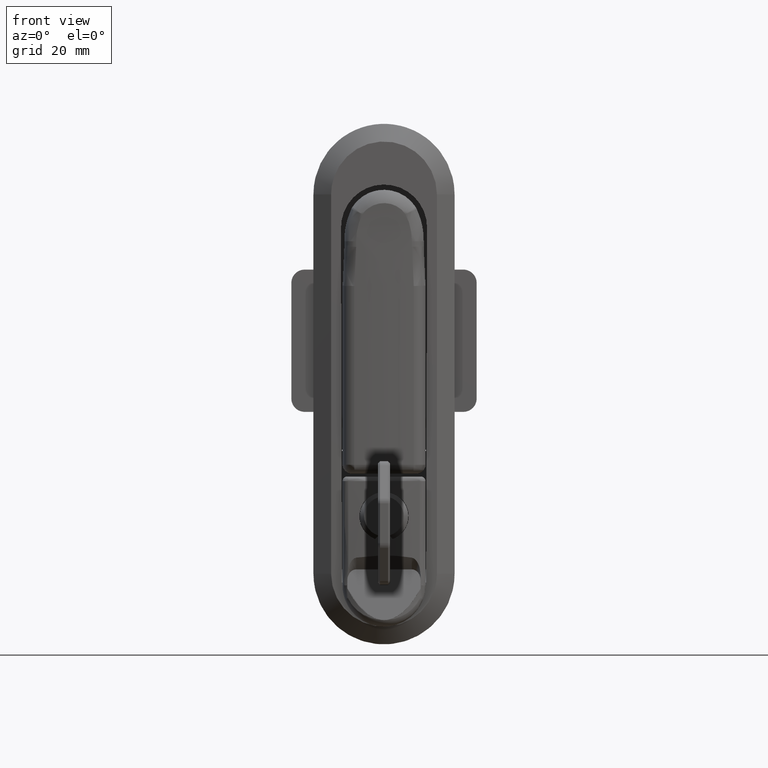
[diagram: clean part render]
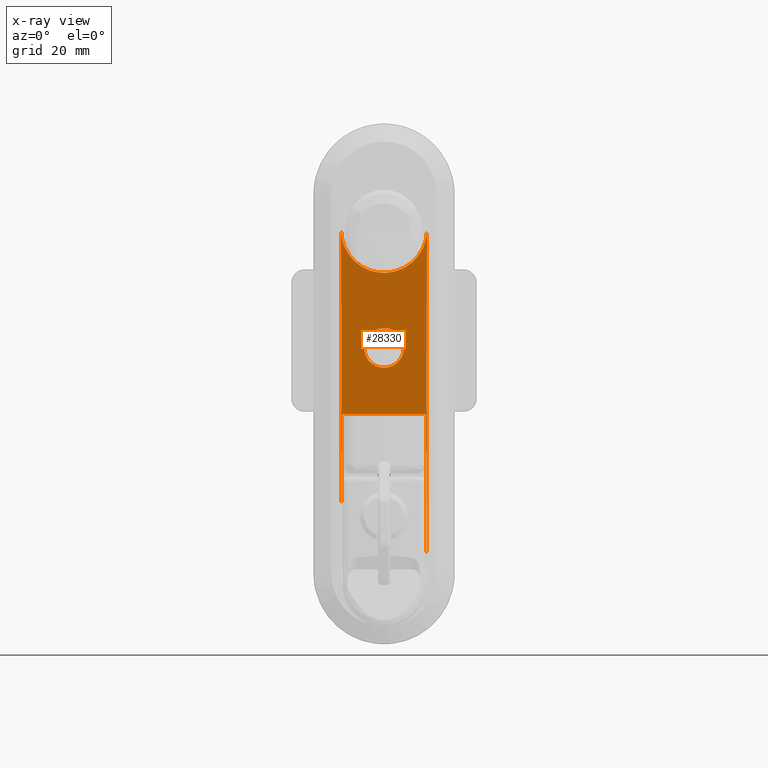
[diagram: x-ray — body ghosted, one internal face saturated and labeled with its STEP entity id]
A machine part, front view, then the same camera in x-ray: the body is ghosted and one INTERNAL B-rep face — a face not visible from any outside direction — is saturated and labeled: STEP entity #28330.
In plain terms, the highlighted face is a freeform B-spline surface patch.
Its self-contained STEP definition (entity closure, byte-faithful):
#23835=CARTESIAN_POINT('',(1.499999999998946,-3.249080952818616,-30.113434270565619));
#23836=VERTEX_POINT('',#23835);
#23842=CARTESIAN_POINT('',(1.499999999998946,1.449507E-012,-22.499999999214850));
#23843=VERTEX_POINT('',#23842);
#23844=CARTESIAN_POINT('',(1.499999999998946,-3.249080952818617,-30.113434270565619));
#23845=CARTESIAN_POINT('',(1.499999999998946,-4.499999999998551,-28.808014589340530));
#23846=CARTESIAN_POINT('',(1.499999999998946,-4.499999999998551,-26.999999999214850));
#23847=CARTESIAN_POINT('',(1.499999999998946,-4.499999999998551,-22.499999999214861));
#23848=CARTESIAN_POINT('',(1.499999999998946,1.449507E-012,-22.499999999214850));
#23856=(BOUNDED_CURVE()B_SPLINE_CURVE(2,(#23844,#23845,#23846,#23847,#23848),.UNSPECIFIED.,.F.,.U.)B_SPLINE_CURVE_WITH_KNOTS((3,2,3),(0.128216544142476,0.250000000000000,0.500000000000000),.UNSPECIFIED.)CURVE()GEOMETRIC_REPRESENTATION_ITEM()RATIONAL_B_SPLINE_CURVE((0.853650360801202,0.857321806462655,1.0,0.707106781186547,1.0))REPRESENTATION_ITEM(''));
#23857=EDGE_CURVE('',#23836,#23843,#23856,.T.);
#23859=CARTESIAN_POINT('',(1.499999999998946,3.421831026643520,-24.077488677582679));
#23860=VERTEX_POINT('',#23859);
#23861=CARTESIAN_POINT('',(1.499999999998946,1.449507E-012,-22.499999999214850));
#23862=CARTESIAN_POINT('',(1.499999999998946,2.074532318331801,-22.499999999214843));
#23863=CARTESIAN_POINT('',(1.499999999998946,3.421831026643521,-24.077488677582686));
#23871=(BOUNDED_CURVE()B_SPLINE_CURVE(2,(#23861,#23862,#23863),.UNSPECIFIED.,.F.,.U.)B_SPLINE_CURVE_WITH_KNOTS((3,3),(0.500000000000000,0.636857054870441),.UNSPECIFIED.)CURVE()GEOMETRIC_REPRESENTATION_ITEM()RATIONAL_B_SPLINE_CURVE((1.0,0.839661986726669,0.854871079696264))REPRESENTATION_ITEM(''));
#23872=EDGE_CURVE('',#23843,#23860,#23871,.T.);
#23976=CARTESIAN_POINT('',(1.499999999998946,1.449507E-012,-31.499999999214850));
#23977=VERTEX_POINT('',#23976);
#23978=CARTESIAN_POINT('',(1.499999999998946,3.421831026643521,-24.077488677582686));
#23979=CARTESIAN_POINT('',(1.499999999998946,4.500000000001449,-25.339866009595148));
#23980=CARTESIAN_POINT('',(1.499999999998946,4.500000000001449,-26.999999999214850));
#23981=CARTESIAN_POINT('',(1.499999999998946,4.500000000001449,-31.499999999214850));
#23982=CARTESIAN_POINT('',(1.499999999998946,1.449507E-012,-31.499999999214850));
#23990=(BOUNDED_CURVE()B_SPLINE_CURVE(2,(#23978,#23979,#23980,#23981,#23982),.UNSPECIFIED.,.F.,.U.)B_SPLINE_CURVE_WITH_KNOTS((3,2,3),(0.636857054870441,0.750000000000000,1.0),.UNSPECIFIED.)CURVE()GEOMETRIC_REPRESENTATION_ITEM()RATIONAL_B_SPLINE_CURVE((0.854871079696264,0.867444794459878,1.0,0.707106781186547,1.0))REPRESENTATION_ITEM(''));
#23991=EDGE_CURVE('',#23860,#23977,#23990,.T.);
#23993=CARTESIAN_POINT('',(1.499999999998946,1.449507E-012,-31.499999999214850));
#23994=CARTESIAN_POINT('',(1.499999999998946,-1.920403666058094,-31.499999999214854));
#23995=CARTESIAN_POINT('',(1.499999999998946,-3.249080952818617,-30.113434270565619));
#24003=(BOUNDED_CURVE()B_SPLINE_CURVE(2,(#23993,#23994,#23995),.UNSPECIFIED.,.F.,.U.)B_SPLINE_CURVE_WITH_KNOTS((3,3),(0.0,0.128216544142476),.UNSPECIFIED.)CURVE()GEOMETRIC_REPRESENTATION_ITEM()RATIONAL_B_SPLINE_CURVE((1.0,0.849784974723893,0.853650360801202))REPRESENTATION_ITEM(''));
#24004=EDGE_CURVE('',#23977,#23836,#24003,.T.);
#26300=CARTESIAN_POINT('',(1.499999999998920,9.500000000264210,-41.999999999983302));
#26301=VERTEX_POINT('',#26300);
#26322=CARTESIAN_POINT('',(1.499999999998920,-9.499999999735792,-41.999999999983302));
#26323=VERTEX_POINT('',#26322);
#26337=CARTESIAN_POINT('',(1.499999999998920,9.500000000264210,-41.999999999983302));
#26338=CARTESIAN_POINT('',(1.499999999998920,-9.499999999735792,-41.999999999983302));
#26339=QUASI_UNIFORM_CURVE('',1,(#26337,#26338),.UNSPECIFIED.,.F.,.U.);
#26340=EDGE_CURVE('',#26301,#26323,#26339,.T.);
#27244=CARTESIAN_POINT('',(1.499999999998946,9.500000000264210,-77.200000000000003));
#27245=VERTEX_POINT('',#27244);
#27246=CARTESIAN_POINT('',(1.499999999998920,9.500000000264210,-41.999999999983302));
#27247=CARTESIAN_POINT('',(1.499999999998946,9.500000000264210,-77.200000000000003));
#27248=QUASI_UNIFORM_CURVE('',1,(#27246,#27247),.UNSPECIFIED.,.F.,.U.);
#27249=EDGE_CURVE('',#26301,#27245,#27248,.T.);
#27321=CARTESIAN_POINT('',(1.499999999998946,-9.499999999735792,-77.200000000000003));
#27322=VERTEX_POINT('',#27321);
#27328=CARTESIAN_POINT('',(1.499999999998920,-9.499999999735792,-41.999999999983302));
#27329=CARTESIAN_POINT('',(1.499999999998946,-9.499999999735792,-77.200000000000003));
#27330=QUASI_UNIFORM_CURVE('',1,(#27328,#27329),.UNSPECIFIED.,.F.,.U.);
#27331=EDGE_CURVE('',#26323,#27322,#27330,.T.);
#27402=CARTESIAN_POINT('',(1.499999999998946,9.555038480335741,-77.200000000192901));
#27403=VERTEX_POINT('',#27402);
#27410=CARTESIAN_POINT('',(1.499999999998946,-9.555038480332369,-77.200000000192901));
#27411=VERTEX_POINT('',#27410);
#27417=CARTESIAN_POINT('',(1.499999999998946,-9.499999999735792,-77.200000000000003));
#27418=CARTESIAN_POINT('',(1.499999999998946,-9.555038480332369,-77.200000000192901));
#27419=QUASI_UNIFORM_CURVE('',1,(#27417,#27418),.UNSPECIFIED.,.F.,.U.);
#27420=EDGE_CURVE('',#27322,#27411,#27419,.T.);
#27429=CARTESIAN_POINT('',(1.499999999998946,9.555038480335741,-77.200000000192901));
#27430=CARTESIAN_POINT('',(1.499999999998946,9.500000000264210,-77.200000000000003));
#27431=QUASI_UNIFORM_CURVE('',1,(#27429,#27430),.UNSPECIFIED.,.F.,.U.);
#27432=EDGE_CURVE('',#27403,#27245,#27431,.T.);
#27442=CARTESIAN_POINT('',(1.499999999998946,-9.748315840098300,-0.431213318262666));
#27443=VERTEX_POINT('',#27442);
#27444=CARTESIAN_POINT('',(1.499999999998946,-9.555038480332369,-77.200000000192901));
#27445=CARTESIAN_POINT('',(1.499999999998946,-9.748315840098300,-0.431213318262666));
#27446=QUASI_UNIFORM_CURVE('',1,(#27444,#27445),.UNSPECIFIED.,.F.,.U.);
#27447=EDGE_CURVE('',#27411,#27443,#27446,.T.);
#27480=CARTESIAN_POINT('',(1.499999999998946,9.748315839861659,-0.431213413543236));
#27481=VERTEX_POINT('',#27480);
#27482=CARTESIAN_POINT('',(1.499999999998946,9.748315839861659,-0.431213413543236));
#27483=CARTESIAN_POINT('',(1.499999999998946,9.555038480335741,-77.200000000192901));
#27484=QUASI_UNIFORM_CURVE('',1,(#27482,#27483),.UNSPECIFIED.,.F.,.U.);
#27485=EDGE_CURVE('',#27481,#27403,#27484,.T.);
#27591=CARTESIAN_POINT('',(1.499999999998946,-9.748315840098302,-0.431213318262664));
#27592=CARTESIAN_POINT('',(1.499999999998946,-9.570439824740676,-9.999999953191590));
#27593=CARTESIAN_POINT('',(1.499999999998946,-0.000000046881250,-9.999999999962597));
#27594=CARTESIAN_POINT('',(1.499999999998946,9.570439730978183,-10.000000046733604));
#27595=CARTESIAN_POINT('',(1.499999999998946,9.748315839861656,-0.431213413543239));
#27603=(BOUNDED_CURVE()B_SPLINE_CURVE(2,(#27591,#27592,#27593,#27594,#27595),.UNSPECIFIED.,.F.,.U.)B_SPLINE_CURVE_WITH_KNOTS((3,2,3),(0.0,0.500000000000000,1.0),.UNSPECIFIED.)CURVE()GEOMETRIC_REPRESENTATION_ITEM()RATIONAL_B_SPLINE_CURVE((1.0,0.713647667357742,1.0,0.713647667357742,1.0))REPRESENTATION_ITEM(''));
#27604=EDGE_CURVE('',#27443,#27481,#27603,.T.);
#28309=CARTESIAN_POINT('',(1.499999999998920,10.722172554487400,3.403387153434922));
#28310=CARTESIAN_POINT('',(1.499999999998920,-10.722173077664459,3.403387153434922));
#28311=CARTESIAN_POINT('',(1.499999999998920,10.722172554487400,-81.034597040058301));
#28312=CARTESIAN_POINT('',(1.499999999998920,-10.722173077664459,-81.034597040058301));
#28313=B_SPLINE_SURFACE_WITH_KNOTS('',1,1,((#28309,#28311),(#28310,#28312)),.UNSPECIFIED.,.F.,.F.,.U.,(2,2),(2,2),(0.0,21.444345632151862),(0.0,84.437984193493222),.UNSPECIFIED.);
#28314=ORIENTED_EDGE('',*,*,#26340,.T.);
#28315=ORIENTED_EDGE('',*,*,#27331,.T.);
#28316=ORIENTED_EDGE('',*,*,#27420,.T.);
#28317=ORIENTED_EDGE('',*,*,#27447,.T.);
#28318=ORIENTED_EDGE('',*,*,#27604,.T.);
#28319=ORIENTED_EDGE('',*,*,#27485,.T.);
#28320=ORIENTED_EDGE('',*,*,#27432,.T.);
#28321=ORIENTED_EDGE('',*,*,#27249,.F.);
#28322=EDGE_LOOP('',(#28314,#28315,#28316,#28317,#28318,#28319,#28320,#28321));
#28323=FACE_OUTER_BOUND('',#28322,.T.);
#28324=ORIENTED_EDGE('',*,*,#23872,.F.);
#28325=ORIENTED_EDGE('',*,*,#23857,.F.);
#28326=ORIENTED_EDGE('',*,*,#24004,.F.);
#28327=ORIENTED_EDGE('',*,*,#23991,.F.);
#28328=EDGE_LOOP('',(#28324,#28325,#28326,#28327));
#28329=FACE_BOUND('',#28328,.T.);
#28330=ADVANCED_FACE('',(#28323,#28329),#28313,.F.);